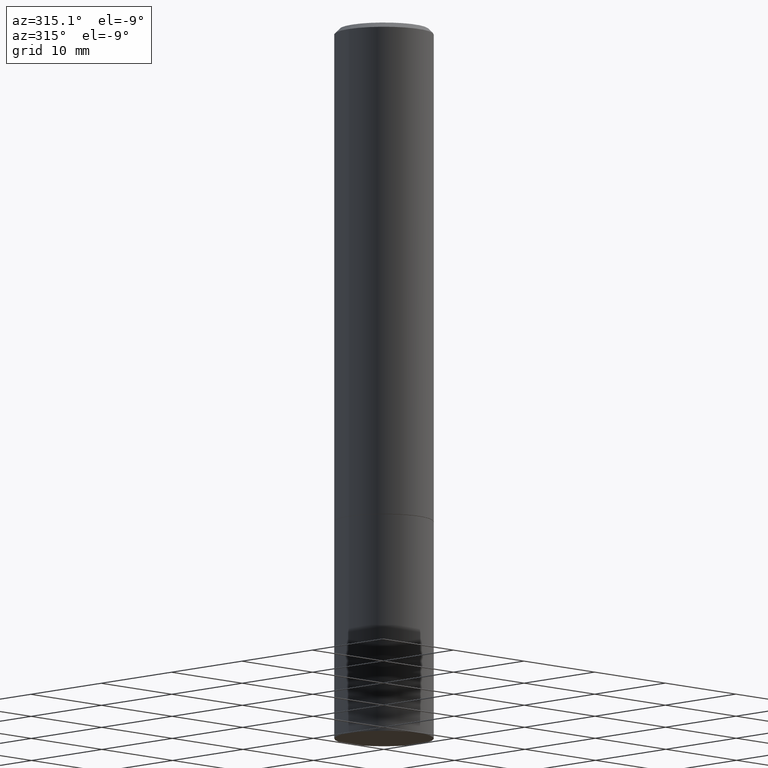
[diagram: clean part render]
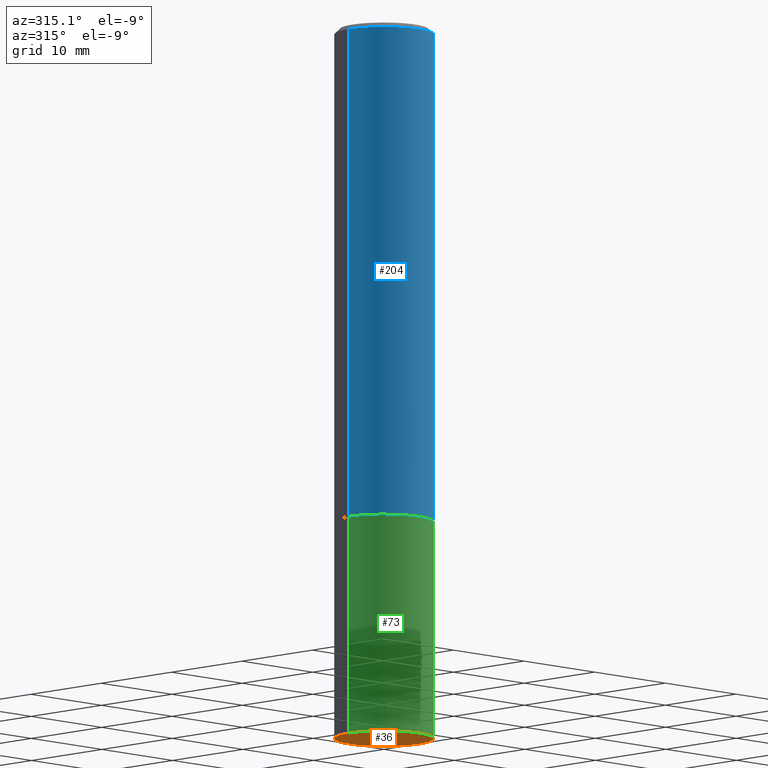
[diagram: same view with three faces highlighted in distinct colors, each labeled with its STEP entity id]
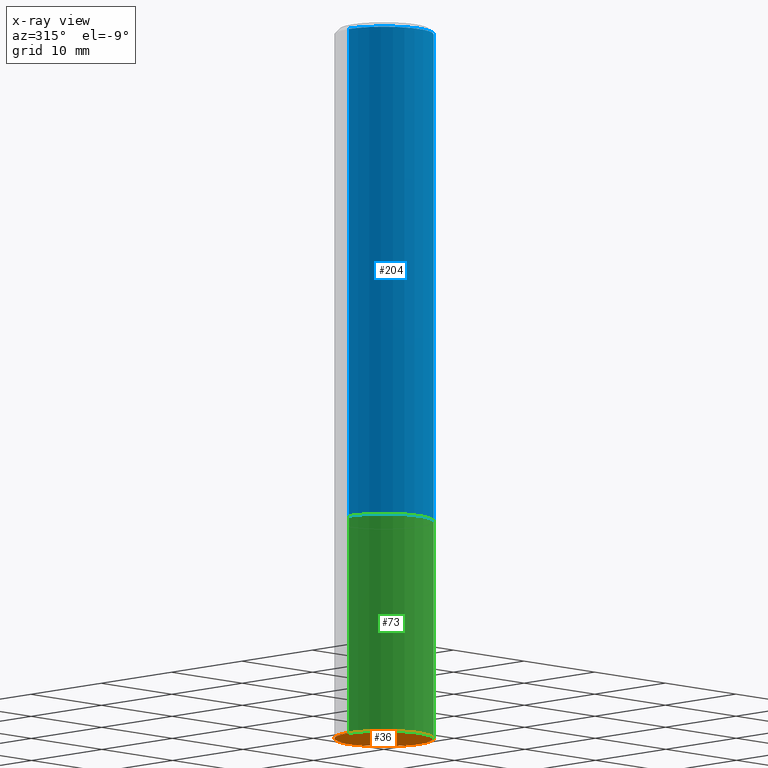
[diagram: x-ray of the same camera — body ghosted, the three highlighted faces saturated]
A machine part, auxiliary view with three faces highlighted in distinct colors.
The next image is the same camera in x-ray (body ghosted, the three faces saturated) — at least one of them is partly hidden behind the body in this view.
Their STEP definitions:

[orange] entity #36 — the highlighted planar face has unit normal (0, -0, -1).
#5 = AXIS2_PLACEMENT_3D ( 'NONE', #317, #77, #11 ) ;
#11 = DIRECTION ( 'NONE',  ( 1.000000000000000000, -6.982962677686267499E-15, 0.000000000000000000 ) ) ;
#36 = ADVANCED_FACE ( 'NONE', ( #214 ), #142, .T. ) ;
#77 = DIRECTION ( 'NONE',  ( -2.445468806185136597E-29, 3.491481338843145583E-15, 1.000000000000000000 ) ) ;
#88 = CARTESIAN_POINT ( 'NONE',  ( 1.374596203102610831E-15, 0.1968499999999901162, -2.834600000000000453 ) ) ;
#91 = AXIS2_PLACEMENT_3D ( 'NONE', #88, #305, #250 ) ;
#94 = CARTESIAN_POINT ( 'NONE',  ( -0.1968500000000000250, -6.986263633954999297E-15, -2.834600000000000009 ) ) ;
#113 = CIRCLE ( 'NONE', #5, 0.1968500000000000250 ) ;
#120 = EDGE_CURVE ( 'NONE', #140, #237, #129, .T. ) ;
#129 = CIRCLE ( 'NONE', #338, 0.1968500000000000250 ) ;
#130 = DIRECTION ( 'NONE',  ( -2.445468806185136597E-29, 3.491481338843145583E-15, 1.000000000000000000 ) ) ;
#140 = VERTEX_POINT ( 'NONE', #94 ) ;
#142 = PLANE ( 'NONE',  #91 ) ;
#149 = EDGE_CURVE ( 'NONE', #237, #140, #113, .T. ) ;
#158 = CARTESIAN_POINT ( 'NONE',  ( 6.931925878012387517E-29, -9.896953003084780885E-15, -2.834600000000000009 ) ) ;
#214 = FACE_OUTER_BOUND ( 'NONE', #349, .T. ) ;
#235 = DIRECTION ( 'NONE',  ( 1.000000000000000000, -6.982962677686267499E-15, 0.000000000000000000 ) ) ;
#237 = VERTEX_POINT ( 'NONE', #289 ) ;
#240 = ORIENTED_EDGE ( 'NONE', *, *, #120, .F. ) ;
#250 = DIRECTION ( 'NONE',  ( -1.000000000000000000, 6.982962677686265922E-15, -4.876176775795935793E-29 ) ) ;
#273 = ORIENTED_EDGE ( 'NONE', *, *, #149, .F. ) ;
#289 = CARTESIAN_POINT ( 'NONE',  ( 0.1968500000000000250, -1.127154920618732249E-14, -2.834600000000000009 ) ) ;
#305 = DIRECTION ( 'NONE',  ( 2.438088387897960049E-29, -3.491481338843145188E-15, -1.000000000000000000 ) ) ;
#317 = CARTESIAN_POINT ( 'NONE',  ( 6.931925878012387517E-29, -9.896953003084780885E-15, -2.834600000000000009 ) ) ;
#338 = AXIS2_PLACEMENT_3D ( 'NONE', #158, #130, #235 ) ;
#349 = EDGE_LOOP ( 'NONE', ( #273, #240 ) ) ;

[blue] entity #204 — the highlighted cylindrical surface (partial cylindrical patch) has radius 5 mm, axis along (-0, 0, 1).
#25 = EDGE_CURVE ( 'NONE', #115, #110, #41, .T. ) ;
#27 = VECTOR ( 'NONE', #209, 39.37007874015748143 ) ;
#41 = CIRCLE ( 'NONE', #249, 0.1968500000000000250 ) ;
#46 = AXIS2_PLACEMENT_3D ( 'NONE', #313, #176, #350 ) ;
#54 = DIRECTION ( 'NONE',  ( -2.445468806185136877E-29, 3.491481338843145188E-15, 1.000000000000000000 ) ) ;
#57 = CARTESIAN_POINT ( 'NONE',  ( 0.1968499999999997752, -1.420318657638187544E-15, -0.02000000000000004205 ) ) ;
#62 = CYLINDRICAL_SURFACE ( 'NONE', #46, 0.1968499999999999139 ) ;
#72 = ORIENTED_EDGE ( 'NONE', *, *, #25, .T. ) ;
#83 = DIRECTION ( 'NONE',  ( -2.445468806185136597E-29, 3.491481338843145583E-15, 1.000000000000000000 ) ) ;
#85 = DIRECTION ( 'NONE',  ( 1.000000000000000000, -6.982962677686267499E-15, 0.000000000000000000 ) ) ;
#99 = EDGE_CURVE ( 'NONE', #306, #323, #182, .T. ) ;
#110 = VERTEX_POINT ( 'NONE', #364 ) ;
#115 = VERTEX_POINT ( 'NONE', #225 ) ;
#147 = EDGE_CURVE ( 'NONE', #115, #306, #325, .T. ) ;
#155 = ORIENTED_EDGE ( 'NONE', *, *, #99, .F. ) ;
#176 = DIRECTION ( 'NONE',  ( -2.445468806185136597E-29, 3.491481338843145583E-15, 1.000000000000000000 ) ) ;
#182 = CIRCLE ( 'NONE', #189, 0.1968499999999997752 ) ;
#189 = AXIS2_PLACEMENT_3D ( 'NONE', #281, #83, #192 ) ;
#192 = DIRECTION ( 'NONE',  ( 1.000000000000000000, -6.982962677686266711E-15, 0.000000000000000000 ) ) ;
#196 = CARTESIAN_POINT ( 'NONE',  ( 0.1968499999999999139, -1.374596203102541017E-15, 9.598753983154295253E-30 ) ) ;
#204 = ADVANCED_FACE ( 'NONE', ( #312 ), #62, .T. ) ;
#209 = DIRECTION ( 'NONE',  ( -2.445468806185136877E-29, 3.491481338843145188E-15, 1.000000000000000000 ) ) ;
#215 = LINE ( 'NONE', #196, #326 ) ;
#223 = DIRECTION ( 'NONE',  ( -2.445468806185136597E-29, 3.491481338843145583E-15, 1.000000000000000000 ) ) ;
#225 = CARTESIAN_POINT ( 'NONE',  ( -0.1968500000000000250, -2.070956205131617817E-15, -1.967500000000000027 ) ) ;
#231 = EDGE_LOOP ( 'NONE', ( #290, #72, #296, #155 ) ) ;
#244 = CARTESIAN_POINT ( 'NONE',  ( 4.811459876169256232E-29, -6.869489534173888700E-15, -1.967500000000000027 ) ) ;
#245 = CARTESIAN_POINT ( 'NONE',  ( -0.1968499999999997752, 1.304766576325676930E-15, -0.02000000000000004205 ) ) ;
#249 = AXIS2_PLACEMENT_3D ( 'NONE', #244, #223, #85 ) ;
#281 = CARTESIAN_POINT ( 'NONE',  ( 4.890937612370283668E-31, -6.982962677686305168E-17, -0.02000000000000004205 ) ) ;
#290 = ORIENTED_EDGE ( 'NONE', *, *, #147, .F. ) ;
#296 = ORIENTED_EDGE ( 'NONE', *, *, #310, .T. ) ;
#306 = VERTEX_POINT ( 'NONE', #245 ) ;
#310 = EDGE_CURVE ( 'NONE', #110, #323, #215, .T. ) ;
#312 = FACE_OUTER_BOUND ( 'NONE', #231, .T. ) ;
#313 = CARTESIAN_POINT ( 'NONE',  ( 0.000000000000000000, 0.000000000000000000, 0.000000000000000000 ) ) ;
#319 = CARTESIAN_POINT ( 'NONE',  ( -0.1968499999999999139, 1.398703375343756604E-15, -9.682923725166778072E-30 ) ) ;
#323 = VERTEX_POINT ( 'NONE', #57 ) ;
#325 = LINE ( 'NONE', #319, #27 ) ;
#326 = VECTOR ( 'NONE', #54, 39.37007874015748143 ) ;
#350 = DIRECTION ( 'NONE',  ( 1.000000000000000000, -6.982962677686266711E-15, 4.876176775795935793E-29 ) ) ;
#364 = CARTESIAN_POINT ( 'NONE',  ( 0.1968500000000000250, -8.244085737276430308E-15, -1.967500000000000027 ) ) ;

[green] entity #73 — the highlighted cylindrical surface (partial cylindrical patch) has radius 5 mm, axis along (-0, 0, 1).
#3 = LINE ( 'NONE', #337, #159 ) ;
#12 = EDGE_CURVE ( 'NONE', #282, #65, #70, .T. ) ;
#15 = CARTESIAN_POINT ( 'NONE',  ( -0.1968500000000000250, -6.986263633954999297E-15, -1.968500000000000139 ) ) ;
#19 = CARTESIAN_POINT ( 'NONE',  ( 0.1968500000000000250, -8.247577218615273316E-15, -1.968500000000000139 ) ) ;
#39 = ORIENTED_EDGE ( 'NONE', *, *, #12, .F. ) ;
#43 = EDGE_CURVE ( 'NONE', #140, #282, #105, .T. ) ;
#47 = DIRECTION ( 'NONE',  ( 1.000000000000000000, -6.982962677686267499E-15, 0.000000000000000000 ) ) ;
#55 = DIRECTION ( 'NONE',  ( -2.445468806185136597E-29, 3.491481338843145583E-15, 1.000000000000000000 ) ) ;
#65 = VERTEX_POINT ( 'NONE', #19 ) ;
#70 = CIRCLE ( 'NONE', #123, 0.1968500000000000250 ) ;
#73 = ADVANCED_FACE ( 'NONE', ( #135 ), #248, .T. ) ;
#94 = CARTESIAN_POINT ( 'NONE',  ( -0.1968500000000000250, -6.986263633954999297E-15, -2.834600000000000009 ) ) ;
#95 = ORIENTED_EDGE ( 'NONE', *, *, #120, .T. ) ;
#98 = ORIENTED_EDGE ( 'NONE', *, *, #294, .T. ) ;
#101 = EDGE_LOOP ( 'NONE', ( #336, #95, #98, #39 ) ) ;
#105 = LINE ( 'NONE', #328, #348 ) ;
#120 = EDGE_CURVE ( 'NONE', #140, #237, #129, .T. ) ;
#123 = AXIS2_PLACEMENT_3D ( 'NONE', #299, #55, #47 ) ;
#129 = CIRCLE ( 'NONE', #338, 0.1968500000000000250 ) ;
#130 = DIRECTION ( 'NONE',  ( -2.445468806185136597E-29, 3.491481338843145583E-15, 1.000000000000000000 ) ) ;
#135 = FACE_OUTER_BOUND ( 'NONE', #101, .T. ) ;
#136 = DIRECTION ( 'NONE',  ( -2.445468806185136877E-29, 3.491481338843145188E-15, 1.000000000000000000 ) ) ;
#140 = VERTEX_POINT ( 'NONE', #94 ) ;
#158 = CARTESIAN_POINT ( 'NONE',  ( 6.931925878012387517E-29, -9.896953003084780885E-15, -2.834600000000000009 ) ) ;
#159 = VECTOR ( 'NONE', #136, 39.37007874015748143 ) ;
#165 = DIRECTION ( 'NONE',  ( -2.445468806185136877E-29, 3.491481338843145188E-15, 1.000000000000000000 ) ) ;
#195 = CARTESIAN_POINT ( 'NONE',  ( 0.000000000000000000, 0.000000000000000000, 0.000000000000000000 ) ) ;
#219 = DIRECTION ( 'NONE',  ( 1.000000000000000000, -6.982962677686265922E-15, 4.876176775795935793E-29 ) ) ;
#235 = DIRECTION ( 'NONE',  ( 1.000000000000000000, -6.982962677686267499E-15, 0.000000000000000000 ) ) ;
#237 = VERTEX_POINT ( 'NONE', #289 ) ;
#248 = CYLINDRICAL_SURFACE ( 'NONE', #341, 0.1968500000000000250 ) ;
#282 = VERTEX_POINT ( 'NONE', #15 ) ;
#289 = CARTESIAN_POINT ( 'NONE',  ( 0.1968500000000000250, -1.127154920618732249E-14, -2.834600000000000009 ) ) ;
#294 = EDGE_CURVE ( 'NONE', #237, #65, #3, .T. ) ;
#299 = CARTESIAN_POINT ( 'NONE',  ( 4.813905344975441835E-29, -6.872981015512731707E-15, -1.968500000000000139 ) ) ;
#328 = CARTESIAN_POINT ( 'NONE',  ( -0.1968500000000000250, 1.398703375343757393E-15, -9.682923725166783677E-30 ) ) ;
#336 = ORIENTED_EDGE ( 'NONE', *, *, #43, .F. ) ;
#337 = CARTESIAN_POINT ( 'NONE',  ( 0.1968500000000000250, -1.374596203102541608E-15, 9.598753983154300858E-30 ) ) ;
#338 = AXIS2_PLACEMENT_3D ( 'NONE', #158, #130, #235 ) ;
#341 = AXIS2_PLACEMENT_3D ( 'NONE', #195, #362, #219 ) ;
#348 = VECTOR ( 'NONE', #165, 39.37007874015748143 ) ;
#362 = DIRECTION ( 'NONE',  ( -2.445468806185136597E-29, 3.491481338843145583E-15, 1.000000000000000000 ) ) ;